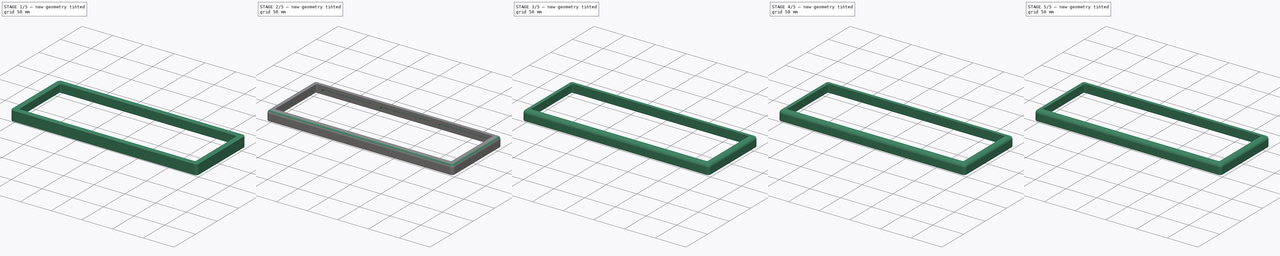
[diagram: build sequence overview — one tinted view per stage of 5, left to right]
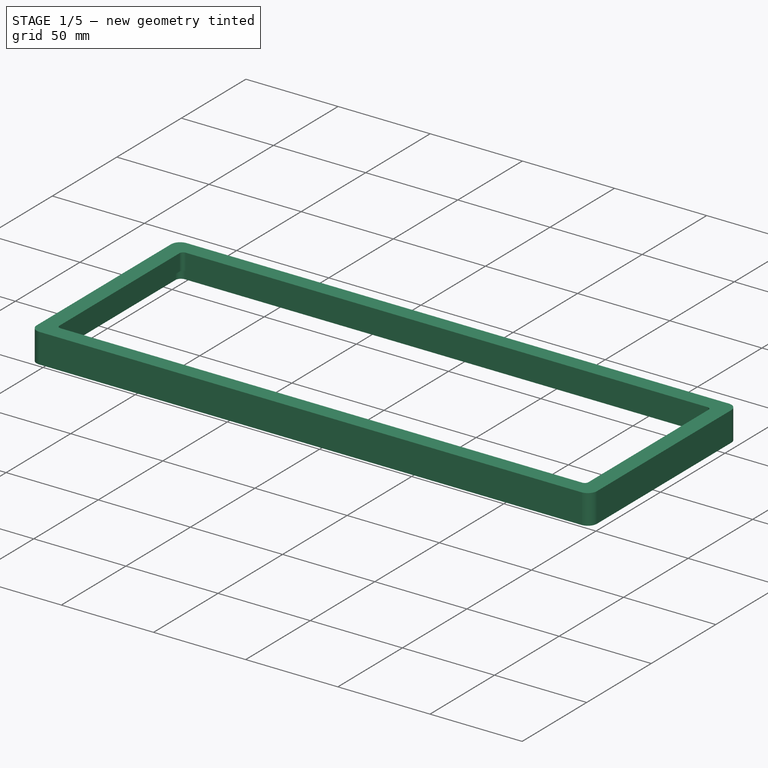
[diagram: stage 1 of 5 — iso view after this stage's code; geometry added in this stage tinted green]
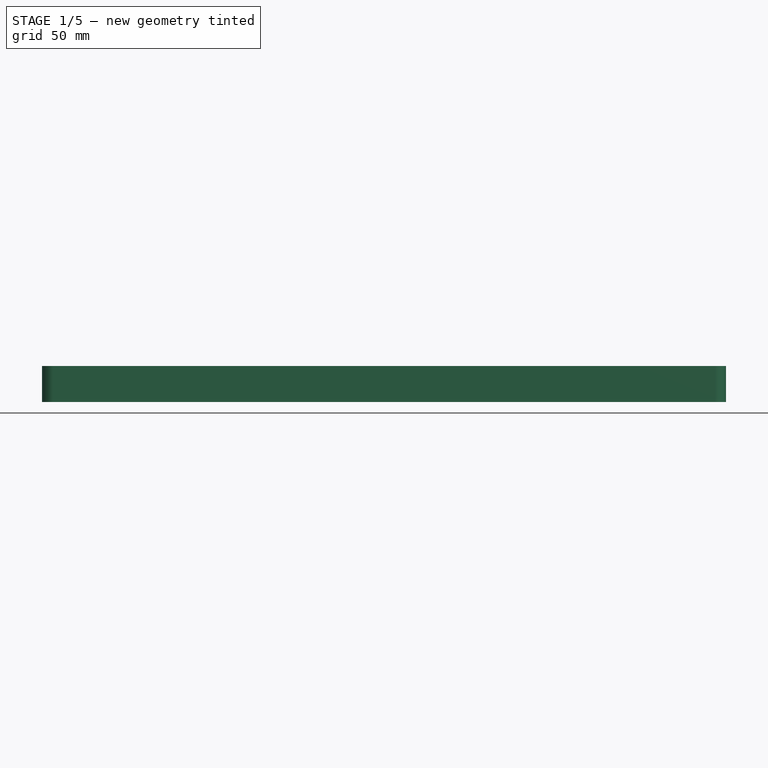
[diagram: stage 1 of 5 — front view after this stage's code; geometry added in this stage tinted green]
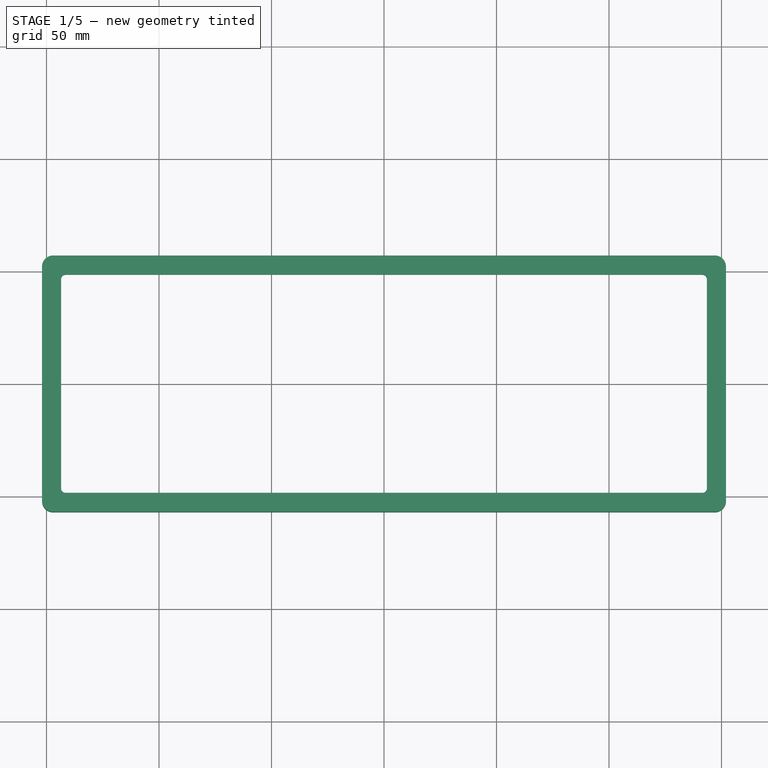
[diagram: stage 1 of 5 — top view after this stage's code; geometry added in this stage tinted green]
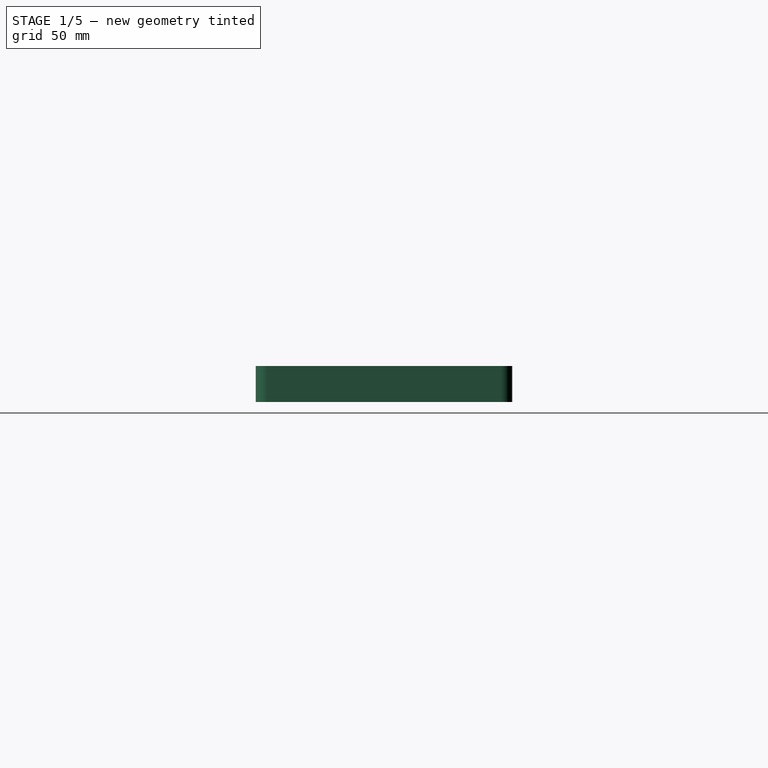
[diagram: stage 1 of 5 — right view after this stage's code; geometry added in this stage tinted green]
FCSTD DOCUMENT  (FreeCAD 0.19R)
Label: jykb60_gasket_top
License: All rights reserved
LicenseURL: http://en.wikipedia.org/wiki/All_rights_reserved
objects: PartDesign::Fillet×54, Sketcher::SketchObject×4, PartDesign::Pocket×3, PartDesign::Pad×1, PartDesign::Body×1
note: 121 computed .brp shape members not serialized (recipe doc carries the construction recipe); baked Part::Feature solids carry a one-line shape summary decoded from their .brp

FEATURE [Sketcher::SketchObject] Sketch001
  FullyConstrained = true
  MapMode = 5
  Support = -> [XY_Plane001]
  sketch-geometry (8):
    g0: LineSegment StartX=-152 StartY=57 StartZ=0 EndX=152 EndY=57 EndZ=0
    g1: LineSegment StartX=152 StartY=57 StartZ=0 EndX=152 EndY=-57 EndZ=0
    g2: LineSegment StartX=152 StartY=-57 StartZ=0 EndX=-152 EndY=-57 EndZ=0
    g3: LineSegment StartX=-152 StartY=-57 StartZ=0 EndX=-152 EndY=57 EndZ=0
    g4: LineSegment StartX=-143.5 StartY=48.5 StartZ=0 EndX=143.5 EndY=48.5 EndZ=0
    g5: LineSegment StartX=143.5 StartY=48.5 StartZ=0 EndX=143.5 EndY=-48.5 EndZ=0
    g6: LineSegment StartX=143.5 StartY=-48.5 StartZ=0 EndX=-143.5 EndY=-48.5 EndZ=0
    g7: LineSegment StartX=-143.5 StartY=-48.5 StartZ=0 EndX=-143.5 EndY=48.5 EndZ=0
  constraints (22):
    c: Coincident(g0,g1)
    c: Coincident(g1,g2)
    c: Coincident(g2,g3)
    c: Coincident(g3,g0)
    c: Horizontal(g0)
    c: Horizontal(g2)
    c: Vertical(g1)
    c: Vertical(g3)
    c: Coincident(g4,g5)
    c: Coincident(g5,g6)
    c: Coincident(g6,g7)
    c: Coincident(g7,g4)
    c: Horizontal(g4)
    c: Horizontal(g6)
    c: Vertical(g5)
    c: Vertical(g7)
    c: DistanceX(g0,g0) = 304
    c: DistanceY(g1,g1) = 114
    c: DistanceY(g5,g5) = 97
    c: DistanceX(g4,g4) = 287
    c: Symmetric(g0,g1,g-1)
    c: Symmetric(g4,g5,g-1)
FEATURE [PartDesign::Pad] Pad
  Direction = (1,1,1)
  Length = 16
  Length2 = 100
  Profile = -> Sketch001
  Type = 0
FEATURE [PartDesign::Fillet] Fillet
  Base = -> Pad [Edge13]
  BaseFeature = -> Pad
  Radius = 2
  SupportTransform = false
FEATURE [PartDesign::Fillet] Fillet001
  Base = -> Fillet [Edge23]
  BaseFeature = -> Fillet
  Radius = 2
  SupportTransform = false
FEATURE [PartDesign::Fillet] Fillet002
  Base = -> Fillet001 [Edge20]
  BaseFeature = -> Fillet001
  Radius = 2
  SupportTransform = false
FEATURE [PartDesign::Fillet] Fillet003
  Base = -> Fillet002 [Edge19]
  BaseFeature = -> Fillet002
  Radius = 2
  SupportTransform = false
FEATURE [PartDesign::Fillet] Fillet004
  Base = -> Fillet003 [Edge34]
  BaseFeature = -> Fillet003
  Radius = 5
  SupportTransform = false
FEATURE [PartDesign::Fillet] Fillet005
  Base = -> Fillet004 [Edge21]
  BaseFeature = -> Fillet004
  Radius = 5
  SupportTransform = false
FEATURE [PartDesign::Fillet] Fillet006
  Base = -> Fillet005 [Edge24]
  BaseFeature = -> Fillet005
  Radius = 5
  SupportTransform = false
FEATURE [PartDesign::Fillet] Fillet007
  Base = -> Fillet006 [Edge23]
  BaseFeature = -> Fillet006
  Radius = 5
  SupportTransform = false
FEATURE [Sketcher::SketchObject] Sketch002
  FullyConstrained = true
  MapMode = 5
  Placement = pos=(0,0,0) rot=(1,0,0;3.14159rad)
  Support = -> [Fillet007]
  sketch-geometry (4):
    g0: LineSegment StartX=-148.5 StartY=53.5 StartZ=0 EndX=148.5 EndY=53.5 EndZ=0
    g1: LineSegment StartX=148.5 StartY=53.5 StartZ=0 EndX=148.5 EndY=-53.5 EndZ=0
    g2: LineSegment StartX=148.5 StartY=-53.5 StartZ=0 EndX=-148.5 EndY=-53.5 EndZ=0
    g3: LineSegment StartX=-148.5 StartY=-53.5 StartZ=0 EndX=-148.5 EndY=53.5 EndZ=0
  constraints (11):
    c: Coincident(g0,g1)
    c: Coincident(g1,g2)
    c: Coincident(g2,g3)
    c: Coincident(g3,g0)
    c: Horizontal(g0)
    c: Horizontal(g2)
    c: Vertical(g1)
    c: Vertical(g3)
    c: DistanceX(g0,g0) = 297
    c: DistanceY(g1,g1) = 107
    c: Symmetric(g0,g1,g-1)
FEATURE [PartDesign::Pocket] Pocket
  BaseFeature = -> Fillet007
  Length = 7
  Length2 = 100
  Profile = -> Sketch002
  Type = 0
FEATURE [PartDesign::Fillet] Fillet008
  Base = -> Pocket [Edge30]
  BaseFeature = -> Pocket
  Radius = 3
  SupportTransform = false
FEATURE [PartDesign::Fillet] Fillet009
  Base = -> Fillet008 [Edge15]
  BaseFeature = -> Fillet008
  Radius = 3
  SupportTransform = false
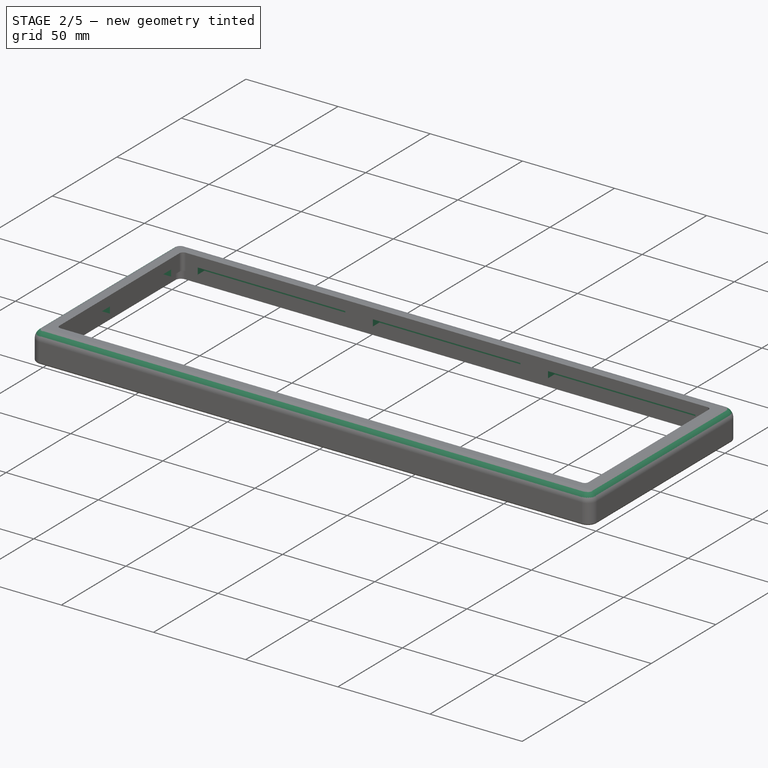
[diagram: stage 2 of 5 — iso view after this stage's code; geometry added in this stage tinted green]
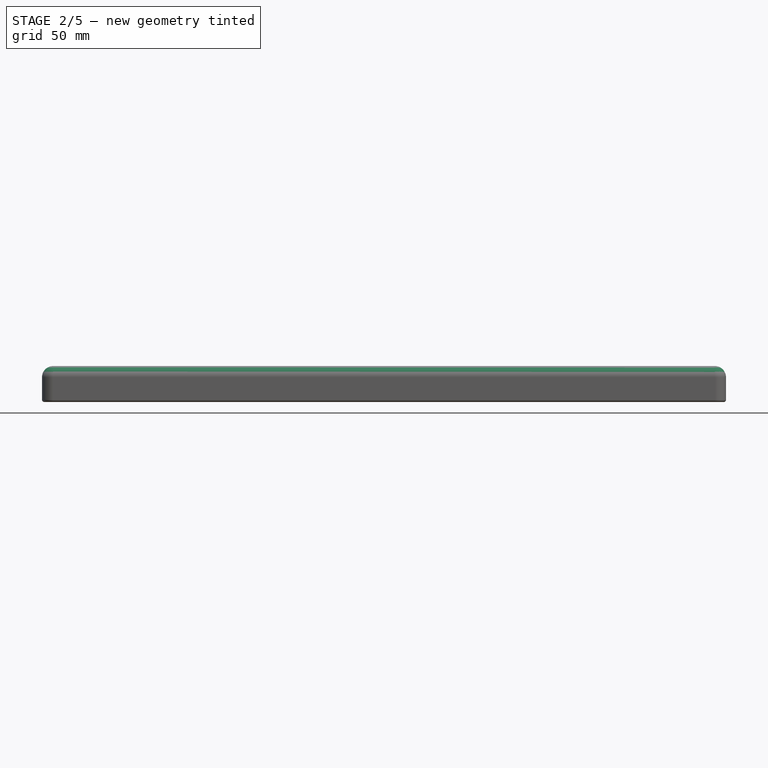
[diagram: stage 2 of 5 — front view after this stage's code; geometry added in this stage tinted green]
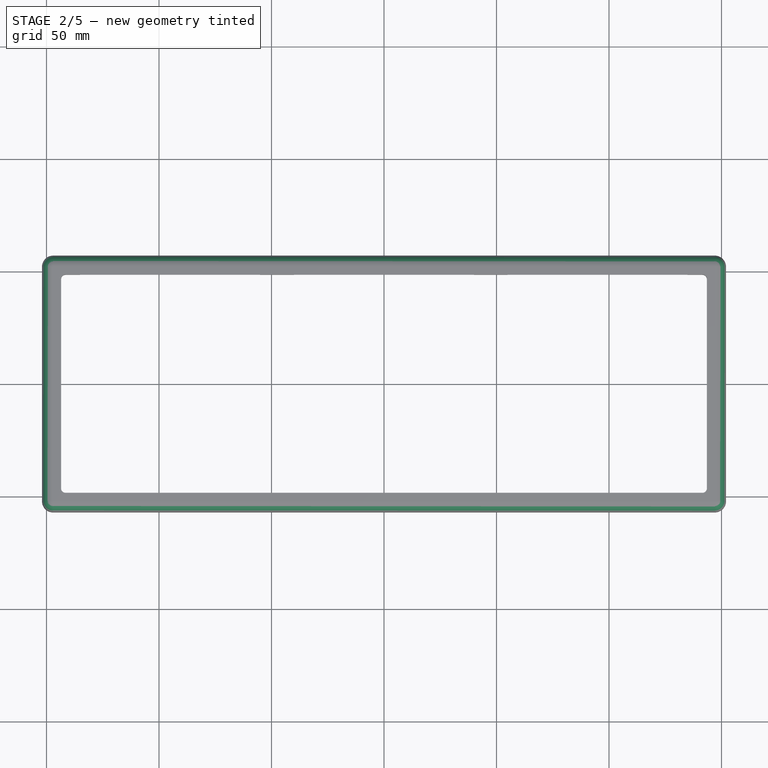
[diagram: stage 2 of 5 — top view after this stage's code; geometry added in this stage tinted green]
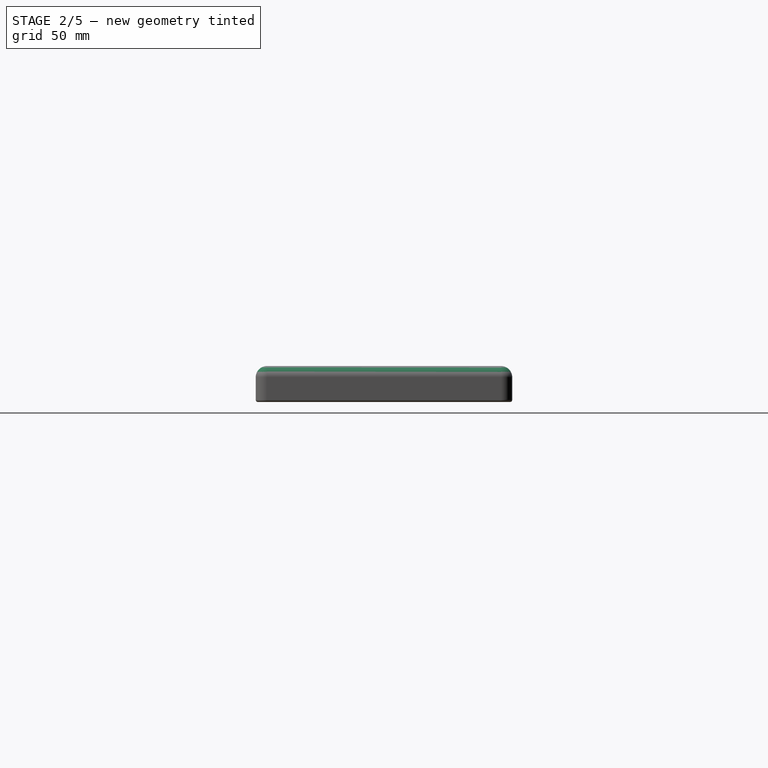
[diagram: stage 2 of 5 — right view after this stage's code; geometry added in this stage tinted green]
FEATURE [PartDesign::Fillet] Fillet010
  Base = -> Fillet009 [Edge22]
  BaseFeature = -> Fillet009
  Radius = 3
  SupportTransform = false
FEATURE [PartDesign::Fillet] Fillet011
  Base = -> Fillet010 [Edge23]
  BaseFeature = -> Fillet010
  Radius = 3
  SupportTransform = false
FEATURE [Sketcher::SketchObject] Sketch003
  FullyConstrained = true
  MapMode = 5
  Placement = pos=(0,0,7) rot=(1,0,0;3.14159rad)
  Support = -> [Fillet011]
  sketch-geometry (24):
    g0: LineSegment StartX=-40 StartY=53.5 StartZ=0 EndX=40 EndY=53.5 EndZ=0
    g1: LineSegment StartX=40 StartY=53.5 StartZ=0 EndX=40 EndY=48.5 EndZ=0
    g2: LineSegment StartX=40 StartY=48.5 StartZ=0 EndX=-40 EndY=48.5 EndZ=0
    g3: LineSegment StartX=-40 StartY=48.5 StartZ=0 EndX=-40 EndY=53.5 EndZ=0
    g4: LineSegment StartX=-40 StartY=-48.5 StartZ=0 EndX=40 EndY=-48.5 EndZ=0
    g5: LineSegment StartX=40 StartY=-48.5 StartZ=0 EndX=40 EndY=-53.5 EndZ=0
    g6: LineSegment StartX=40 StartY=-53.5 StartZ=0 EndX=-40 EndY=-53.5 EndZ=0
    g7: LineSegment StartX=-40 StartY=-53.5 StartZ=0 EndX=-40 EndY=-48.5 EndZ=0
    g8: LineSegment StartX=-135 StartY=53.5 StartZ=0 EndX=-55 EndY=53.5 EndZ=0
    g9: LineSegment StartX=-55 StartY=53.5 StartZ=0 EndX=-55 EndY=48.5 EndZ=0
    g10: LineSegment StartX=-55 StartY=48.5 StartZ=0 EndX=-135 EndY=48.5 EndZ=0
    g11: LineSegment StartX=-135 StartY=48.5 StartZ=0 EndX=-135 EndY=53.5 EndZ=0
    g12: LineSegment StartX=55 StartY=53.5 StartZ=0 EndX=135 EndY=53.5 EndZ=0
    g13: LineSegment StartX=135 StartY=53.5 StartZ=0 EndX=135 EndY=48.5 EndZ=0
    g14: LineSegment StartX=135 StartY=48.5 StartZ=0 EndX=55 EndY=48.5 EndZ=0
    g15: LineSegment StartX=55 StartY=48.5 StartZ=0 EndX=55 EndY=53.5 EndZ=0
    g16: LineSegment StartX=55 StartY=-48.5 StartZ=0 EndX=135 EndY=-48.5 EndZ=0
    g17: LineSegment StartX=135 StartY=-48.5 StartZ=0 EndX=135 EndY=-53.5 EndZ=0
    g18: LineSegment StartX=135 StartY=-53.5 StartZ=0 EndX=55 EndY=-53.5 EndZ=0
    g19: LineSegment StartX=55 StartY=-53.5 StartZ=0 EndX=55 EndY=-48.5 EndZ=0
    g20: LineSegment StartX=-135 StartY=-48.5 StartZ=0 EndX=-55 EndY=-48.5 EndZ=0
    g21: LineSegment StartX=-55 StartY=-48.5 StartZ=0 EndX=-55 EndY=-53.5 EndZ=0
    g22: LineSegment StartX=-55 StartY=-53.5 StartZ=0 EndX=-135 EndY=-53.5 EndZ=0
    g23: LineSegment StartX=-135 StartY=-53.5 StartZ=0 EndX=-135 EndY=-48.5 EndZ=0
  constraints (72):
    c: Coincident(g0,g1)
    c: Coincident(g1,g2)
    c: Coincident(g2,g3)
    c: Coincident(g3,g0)
    c: Horizontal(g0)
    c: Horizontal(g2)
    c: Vertical(g1)
    c: Vertical(g3)
    c: Coincident(g4,g5)
    c: Coincident(g5,g6)
    c: Coincident(g6,g7)
    c: Coincident(g7,g4)
    c: Horizontal(g4)
    c: Horizontal(g6)
    c: Vertical(g5)
    c: Vertical(g7)
    c: Coincident(g8,g9)
    c: Coincident(g9,g10)
    c: Coincident(g10,g11)
    c: Coincident(g11,g8)
    c: Horizontal(g8)
    c: Horizontal(g10)
    c: Vertical(g9)
    c: Vertical(g11)
    c: Coincident(g12,g13)
    c: Coincident(g13,g14)
    c: Coincident(g14,g15)
    c: Coincident(g15,g12)
    c: Horizontal(g12)
    c: Horizontal(g14)
    c: Vertical(g13)
    c: Vertical(g15)
    c: Coincident(g16,g17)
    c: Coincident(g17,g18)
    c: Coincident(g18,g19)
    c: Coincident(g19,g16)
    c: Horizontal(g16)
    c: Horizontal(g18)
    c: Vertical(g17)
    c: Vertical(g19)
    c: Coincident(g20,g21)
    c: Coincident(g21,g22)
    c: Coincident(g22,g23)
    c: Coincident(g23,g20)
    c: Horizontal(g20)
    c: Horizontal(g22)
    c: Vertical(g21)
    c: Vertical(g23)
    c: DistanceX(g12,g12) = 80
    c: DistanceX(g0,g0) = 80
    c: DistanceX(g8,g8) = 80
    c: DistanceX(g20,g20) = 80
    c: DistanceX(g4,g4) = 80
    c: DistanceX(g16,g16) = 80
    c: DistanceY(g13,g13) = 5
    c: DistanceY(g1,g1) = 5
    c: DistanceY(g9,g9) = 5
    c: DistanceY(g21,g21) = 5
    c: DistanceY(g5,g5) = 5
    c: DistanceY(g19,g19) = 5
    c: DistanceX(g0,g12) = 15
    c: DistanceX(g8,g0) = 15
    c: DistanceX(g20,g4) = 15
    c: DistanceX(g4,g16) = 15
    c: DistanceX(g-1,g0) = 40
    c: DistanceX(g-1,g5) = 40
    c: DistanceY(g-1,g9) = 48.5
    c: DistanceY(g-1,g2) = 48.5
    c: DistanceY(g-1,g14) = 48.5
    c: DistanceY(g16,g-1) = 48.5
    c: DistanceY(g4,g-1) = 48.5
    c: DistanceY(g20,g-1) = 48.5
FEATURE [PartDesign::Pocket] Pocket001
  BaseFeature = -> Fillet011
  Length = 3.5
  Length2 = 100
  Profile = -> Sketch003
  Type = 0
FEATURE [Sketcher::SketchObject] Sketch004
  FullyConstrained = true
  MapMode = 5
  Placement = pos=(0,0,7) rot=(1,0,0;3.14159rad)
  Support = -> [Pocket001]
  sketch-geometry (16):
    g0: LineSegment StartX=-148.5 StartY=40 StartZ=0 EndX=-143.5 EndY=40 EndZ=0
    g1: LineSegment StartX=-143.5 StartY=40 StartZ=0 EndX=-143.5 EndY=7.5 EndZ=0
    g2: LineSegment StartX=-143.5 StartY=7.5 StartZ=0 EndX=-148.5 EndY=7.5 EndZ=0
    g3: LineSegment StartX=-148.5 StartY=7.5 StartZ=0 EndX=-148.5 EndY=40 EndZ=0
    g4: LineSegment StartX=143.5 StartY=40 StartZ=0 EndX=148.5 EndY=40 EndZ=0
    g5: LineSegment StartX=148.5 StartY=40 StartZ=0 EndX=148.5 EndY=7.5 EndZ=0
    g6: LineSegment StartX=148.5 StartY=7.5 StartZ=0 EndX=143.5 EndY=7.5 EndZ=0
    g7: LineSegment StartX=143.5 StartY=7.5 StartZ=0 EndX=143.5 EndY=40 EndZ=0
    g8: LineSegment StartX=143.5 StartY=-7.5 StartZ=0 EndX=148.5 EndY=-7.5 EndZ=0
    g9: LineSegment StartX=148.5 StartY=-7.5 StartZ=0 EndX=148.5 EndY=-40 EndZ=0
    g10: LineSegment StartX=148.5 StartY=-40 StartZ=0 EndX=143.5 EndY=-40 EndZ=0
    g11: LineSegment StartX=143.5 StartY=-40 StartZ=0 EndX=143.5 EndY=-7.5 EndZ=0
    g12: LineSegment StartX=-148.5 StartY=-7.5 StartZ=0 EndX=-143.5 EndY=-7.5 EndZ=0
    g13: LineSegment StartX=-143.5 StartY=-7.5 StartZ=0 EndX=-143.5 EndY=-40 EndZ=0
    g14: LineSegment StartX=-143.5 StartY=-40 StartZ=0 EndX=-148.5 EndY=-40 EndZ=0
    g15: LineSegment StartX=-148.5 StartY=-40 StartZ=0 EndX=-148.5 EndY=-7.5 EndZ=0
  constraints (48):
    c: Coincident(g0,g1)
    c: Coincident(g1,g2)
    c: Coincident(g2,g3)
    c: Coincident(g3,g0)
    c: Horizontal(g0)
    c: Horizontal(g2)
    c: Vertical(g1)
    c: Vertical(g3)
    c: Coincident(g4,g5)
    c: Coincident(g5,g6)
    c: Coincident(g6,g7)
    c: Coincident(g7,g4)
    c: Horizontal(g4)
    c: Horizontal(g6)
    c: Vertical(g5)
    c: Vertical(g7)
    c: Coincident(g8,g9)
    c: Coincident(g9,g10)
    c: Coincident(g10,g11)
    c: Coincident(g11,g8)
    c: Horizontal(g8)
    c: Horizontal(g10)
    c: Vertical(g9)
    c: Vertical(g11)
    c: Coincident(g12,g13)
    c: Coincident(g13,g14)
    c: Coincident(g14,g15)
    c: Coincident(g15,g12)
    c: Horizontal(g12)
    c: Horizontal(g14)
    c: Vertical(g13)
    c: Vertical(g15)
    c: DistanceX(g4,g4) = 5
    c: DistanceX(g8,g8) = 5
    c: DistanceX(g12,g12) = 5
    c: DistanceX(g0,g0) = 5
    c: DistanceY(g5,g5) = 32.5
    c: DistanceY(g9,g9) = 32.5
    c: DistanceY(g13,g13) = 32.5
    c: DistanceY(g1,g1) = 32.5
    c: DistanceX(g-1,g4) = 143.5
    c: DistanceX(g-1,g10) = 143.5
    c: DistanceX(g0,g-1) = 143.5
    c: DistanceX(g13,g-1) = 143.5
    c: DistanceY(g-1,g1) = 7.5
    c: DistanceY(g12,g-1) = 7.5
    c: DistanceY(g-1,g6) = 7.5
    c: DistanceY(g8,g-1) = 7.5
FEATURE [PartDesign::Pocket] Pocket002
  BaseFeature = -> Pocket001
  Length = 3.5
  Length2 = 100
  Profile = -> Sketch004
  Type = 0
FEATURE [PartDesign::Fillet] Fillet012
  Base = -> Pocket002 [Edge65]
  BaseFeature = -> Pocket002
  Radius = 5
  SupportTransform = false
FEATURE [PartDesign::Fillet] Fillet013
  Base = -> Fillet012 [Edge22]
  BaseFeature = -> Fillet012
  Radius = 1
  SupportTransform = false
FEATURE [PartDesign::Fillet] Fillet014
  Base = -> Fillet013 [Edge159]
  BaseFeature = -> Fillet013
  Radius = 1
  SupportTransform = false
FEATURE [PartDesign::Fillet] Fillet015
  Base = -> Fillet014 [Edge70]
  BaseFeature = -> Fillet014
  Radius = 1
  SupportTransform = false
FEATURE [PartDesign::Fillet] Fillet016
  Base = -> Fillet015 [Edge55]
  BaseFeature = -> Fillet015
  Radius = 1
  SupportTransform = false
FEATURE [PartDesign::Fillet] Fillet017
  Base = -> Fillet016 [Edge69]
  BaseFeature = -> Fillet016
  Radius = 1
  SupportTransform = false
FEATURE [PartDesign::Fillet] Fillet018
  Base = -> Fillet017 [Edge119]
  BaseFeature = -> Fillet017
  Radius = 1
  SupportTransform = false
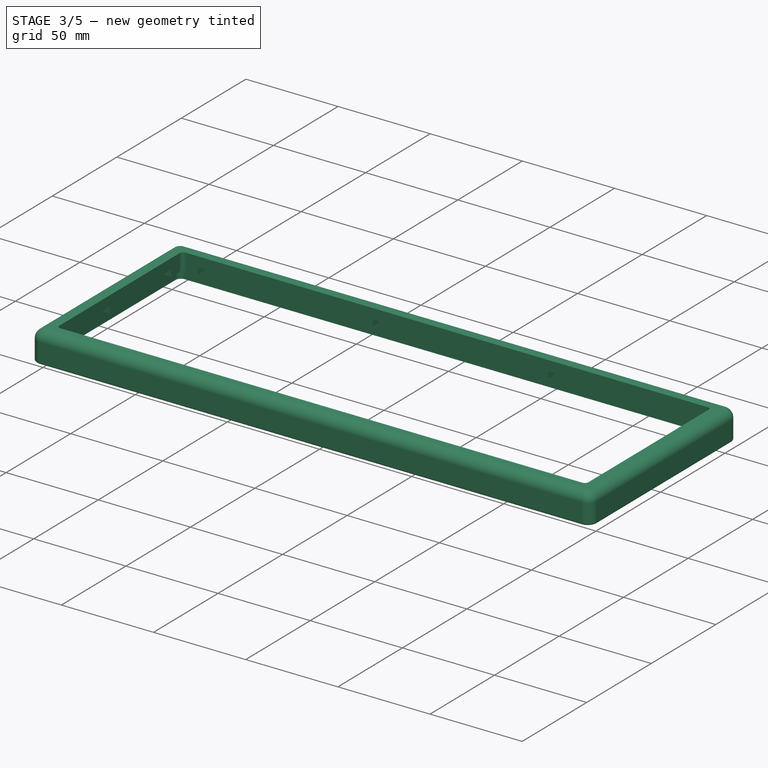
[diagram: stage 3 of 5 — iso view after this stage's code; geometry added in this stage tinted green]
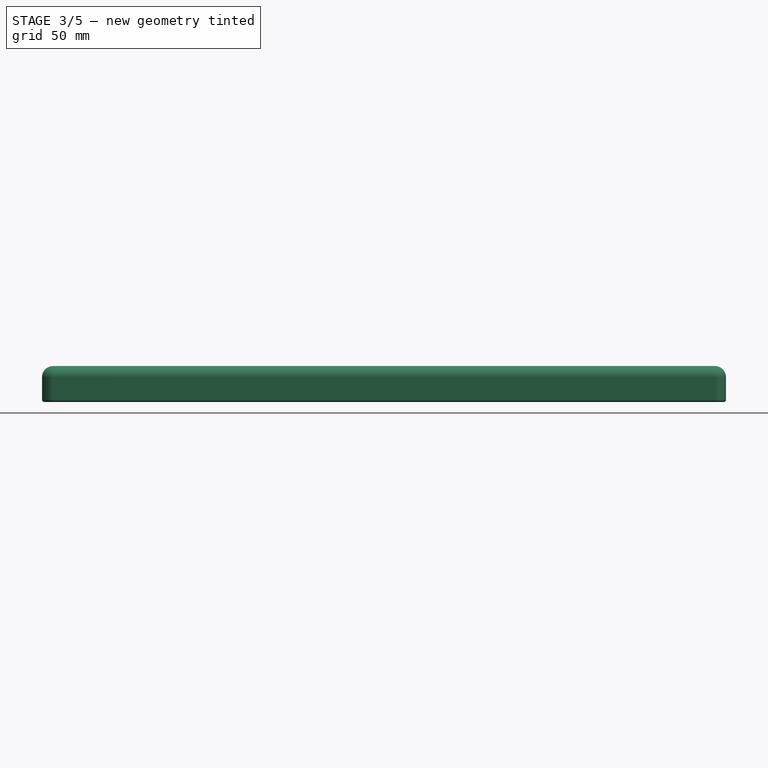
[diagram: stage 3 of 5 — front view after this stage's code; geometry added in this stage tinted green]
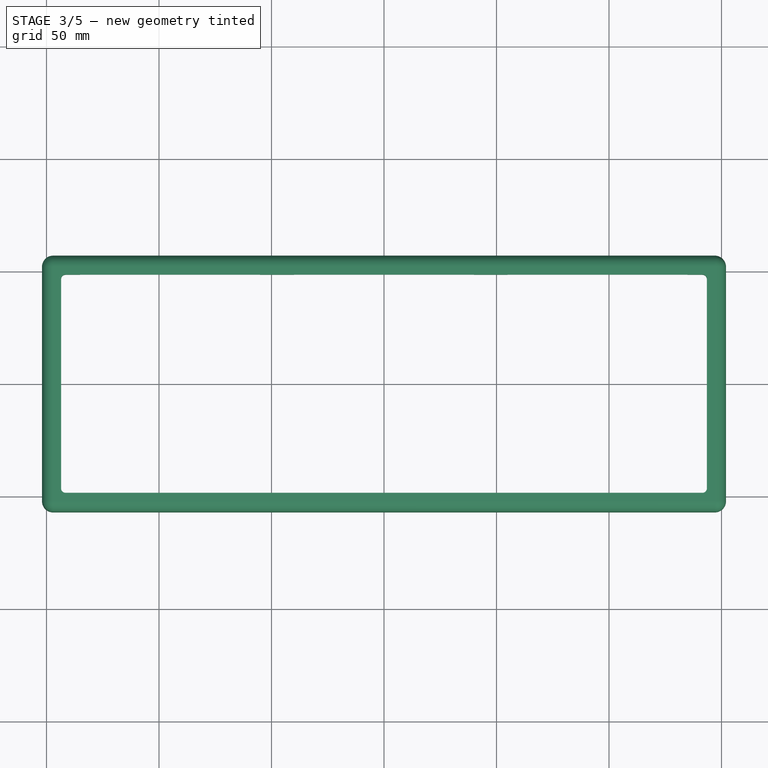
[diagram: stage 3 of 5 — top view after this stage's code; geometry added in this stage tinted green]
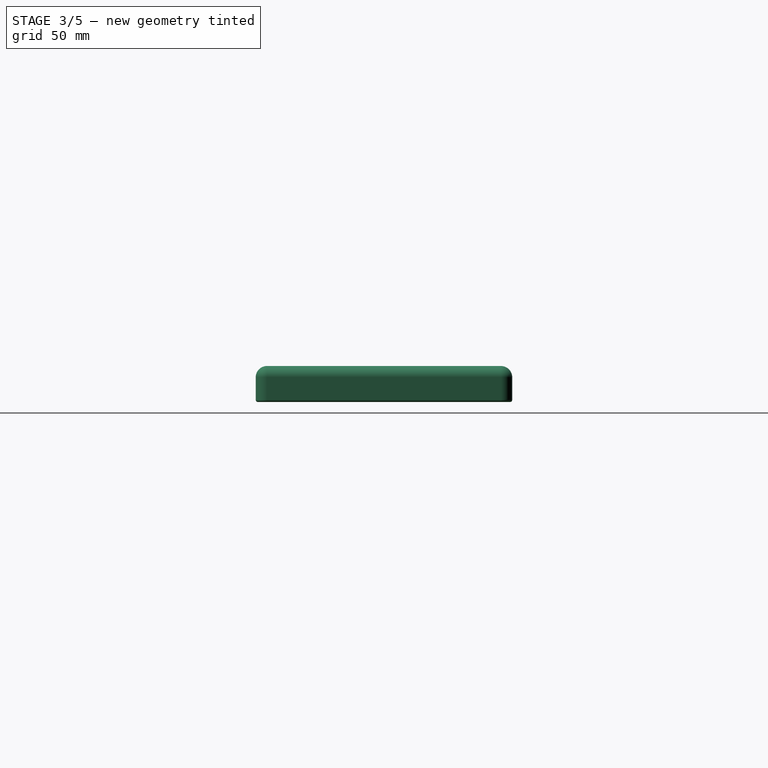
[diagram: stage 3 of 5 — right view after this stage's code; geometry added in this stage tinted green]
FEATURE [PartDesign::Fillet] Fillet019
  Base = -> Fillet018 [Edge9]
  BaseFeature = -> Fillet018
  Radius = 1
  SupportTransform = false
FEATURE [PartDesign::Fillet] Fillet020
  Base = -> Fillet019 [Edge15]
  BaseFeature = -> Fillet019
  Radius = 1
  SupportTransform = false
FEATURE [PartDesign::Fillet] Fillet021
  Base = -> Fillet020 [Edge32]
  BaseFeature = -> Fillet020
  Radius = 1
  SupportTransform = false
FEATURE [PartDesign::Fillet] Fillet022
  Base = -> Fillet021 [Edge24]
  BaseFeature = -> Fillet021
  Radius = 1
  SupportTransform = false
FEATURE [PartDesign::Fillet] Fillet023
  Base = -> Fillet022 [Edge89]
  BaseFeature = -> Fillet022
  Radius = 1
  SupportTransform = false
FEATURE [PartDesign::Fillet] Fillet024
  Base = -> Fillet023 [Edge18]
  BaseFeature = -> Fillet023
  Radius = 1
  SupportTransform = false
FEATURE [PartDesign::Fillet] Fillet025
  Base = -> Fillet024 [Edge11]
  BaseFeature = -> Fillet024
  Radius = 1
  SupportTransform = false
FEATURE [PartDesign::Fillet] Fillet026
  Base = -> Fillet025 [Edge139]
  BaseFeature = -> Fillet025
  Radius = 1
  SupportTransform = false
FEATURE [PartDesign::Fillet] Fillet027
  Base = -> Fillet026 [Edge13]
  BaseFeature = -> Fillet026
  Radius = 1
  SupportTransform = false
FEATURE [PartDesign::Fillet] Fillet028
  Base = -> Fillet027 [Edge43]
  BaseFeature = -> Fillet027
  Radius = 1
  SupportTransform = false
FEATURE [PartDesign::Fillet] Fillet029
  Base = -> Fillet028 [Edge39]
  BaseFeature = -> Fillet028
  Radius = 1
  SupportTransform = false
FEATURE [PartDesign::Fillet] Fillet030
  Base = -> Fillet029 [Edge174]
  BaseFeature = -> Fillet029
  Radius = 1
  SupportTransform = false
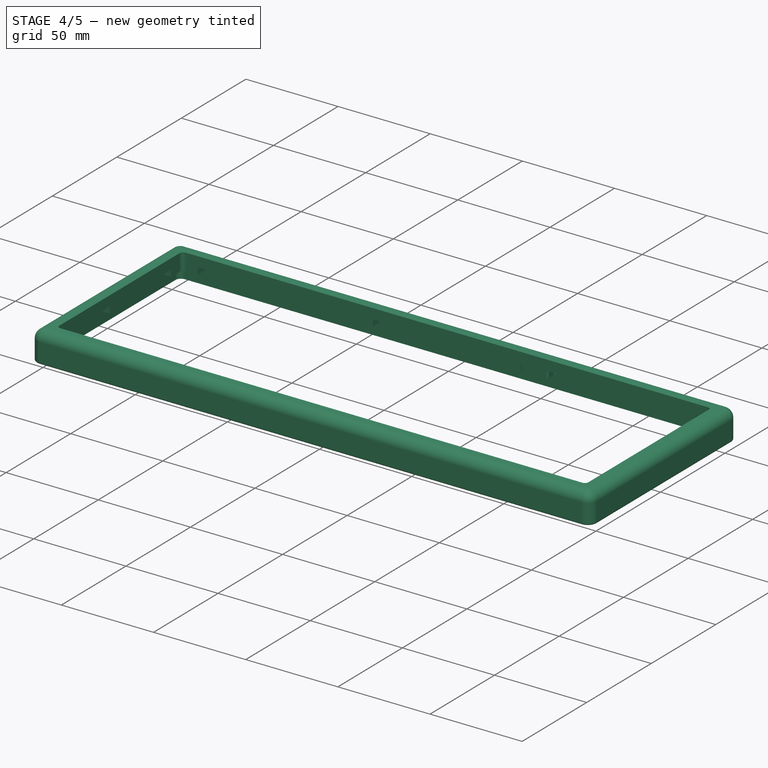
[diagram: stage 4 of 5 — iso view after this stage's code; geometry added in this stage tinted green]
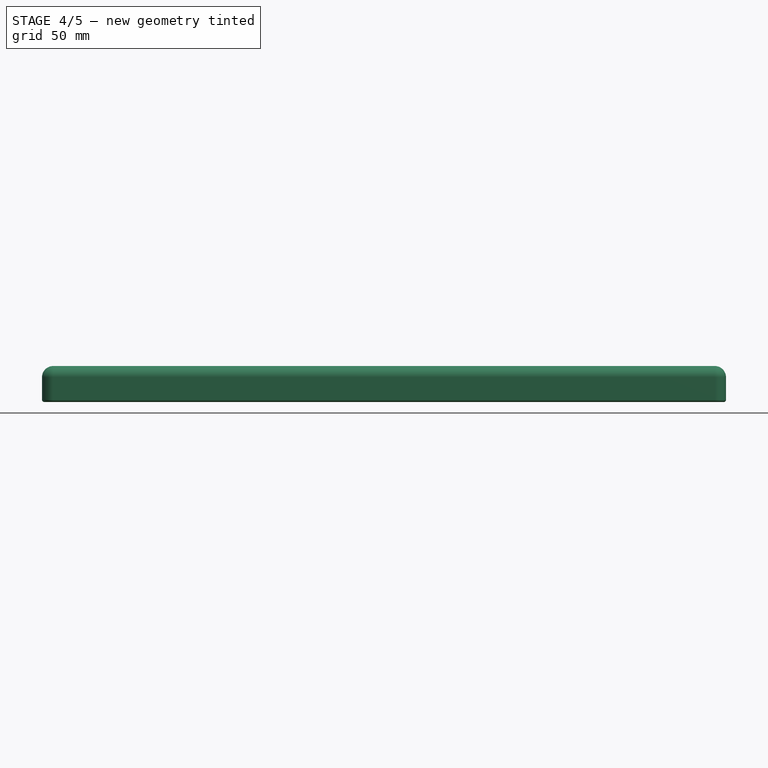
[diagram: stage 4 of 5 — front view after this stage's code; geometry added in this stage tinted green]
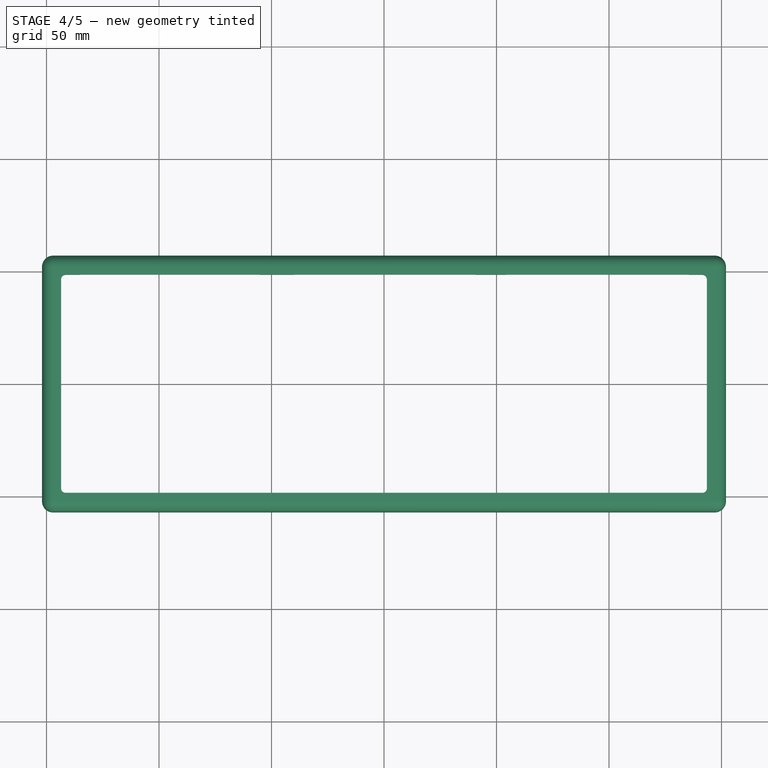
[diagram: stage 4 of 5 — top view after this stage's code; geometry added in this stage tinted green]
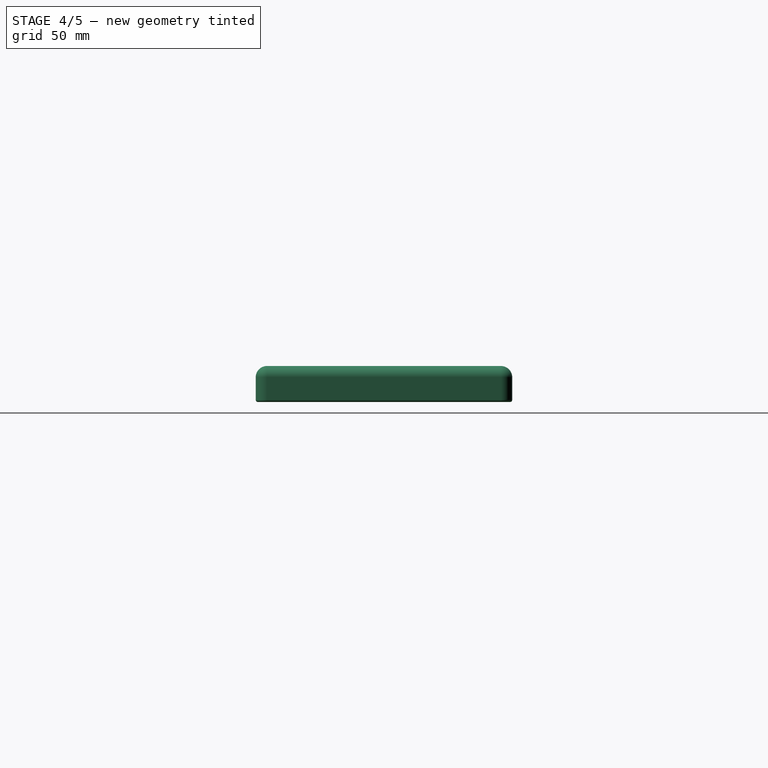
[diagram: stage 4 of 5 — right view after this stage's code; geometry added in this stage tinted green]
FEATURE [PartDesign::Fillet] Fillet031
  Base = -> Fillet030 [Edge9]
  BaseFeature = -> Fillet030
  Radius = 1
  SupportTransform = false
FEATURE [PartDesign::Fillet] Fillet032
  Base = -> Fillet031 [Edge15]
  BaseFeature = -> Fillet031
  Radius = 1
  SupportTransform = false
FEATURE [PartDesign::Fillet] Fillet033
  Base = -> Fillet032 [Edge28]
  BaseFeature = -> Fillet032
  Radius = 1
  SupportTransform = false
FEATURE [PartDesign::Fillet] Fillet034
  Base = -> Fillet033 [Edge54]
  BaseFeature = -> Fillet033
  Radius = 1
  SupportTransform = false
FEATURE [PartDesign::Fillet] Fillet035
  Base = -> Fillet034 [Edge16]
  BaseFeature = -> Fillet034
  Radius = 1
  SupportTransform = false
FEATURE [PartDesign::Fillet] Fillet036
  Base = -> Fillet035 [Edge101]
  BaseFeature = -> Fillet035
  Radius = 1
  SupportTransform = false
FEATURE [PartDesign::Fillet] Fillet037
  Base = -> Fillet036 [Edge34]
  BaseFeature = -> Fillet036
  Radius = 1
  SupportTransform = false
FEATURE [PartDesign::Fillet] Fillet038
  Base = -> Fillet037 [Edge103]
  BaseFeature = -> Fillet037
  Radius = 1
  SupportTransform = false
FEATURE [PartDesign::Fillet] Fillet039
  Base = -> Fillet038 [Edge9]
  BaseFeature = -> Fillet038
  Radius = 1
  SupportTransform = false
FEATURE [PartDesign::Fillet] Fillet040
  Base = -> Fillet039 [Edge15]
  BaseFeature = -> Fillet039
  Radius = 1
  SupportTransform = false
FEATURE [PartDesign::Fillet] Fillet041
  Base = -> Fillet040 [Edge32]
  BaseFeature = -> Fillet040
  Radius = 1
  SupportTransform = false
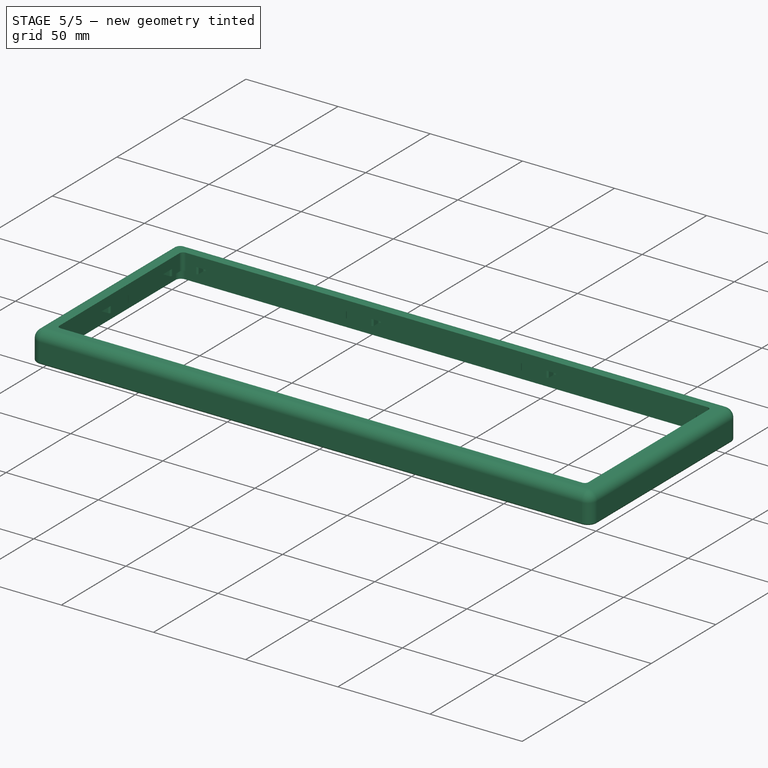
[diagram: stage 5 of 5 — iso view after this stage's code; geometry added in this stage tinted green]
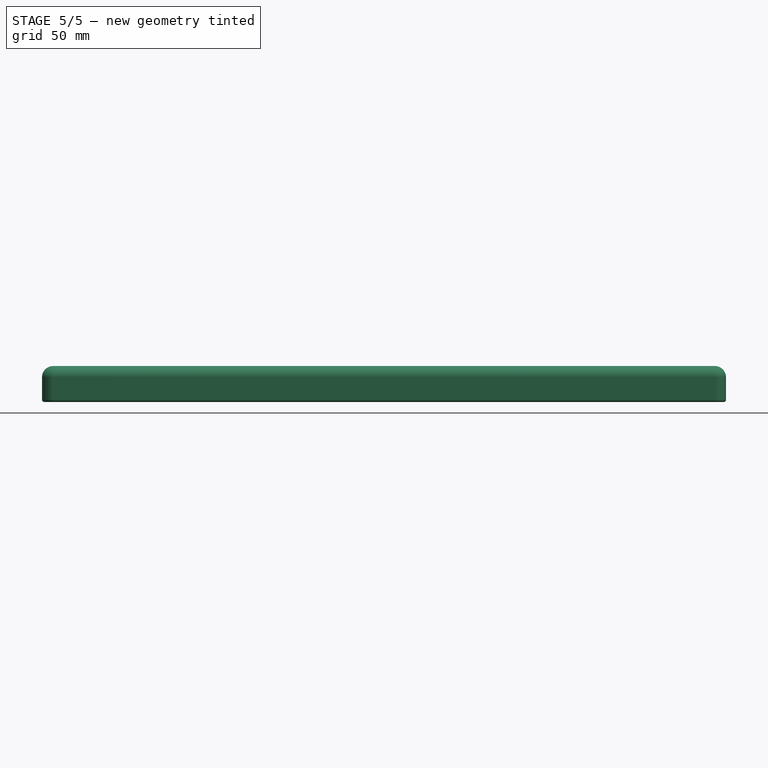
[diagram: stage 5 of 5 — front view after this stage's code; geometry added in this stage tinted green]
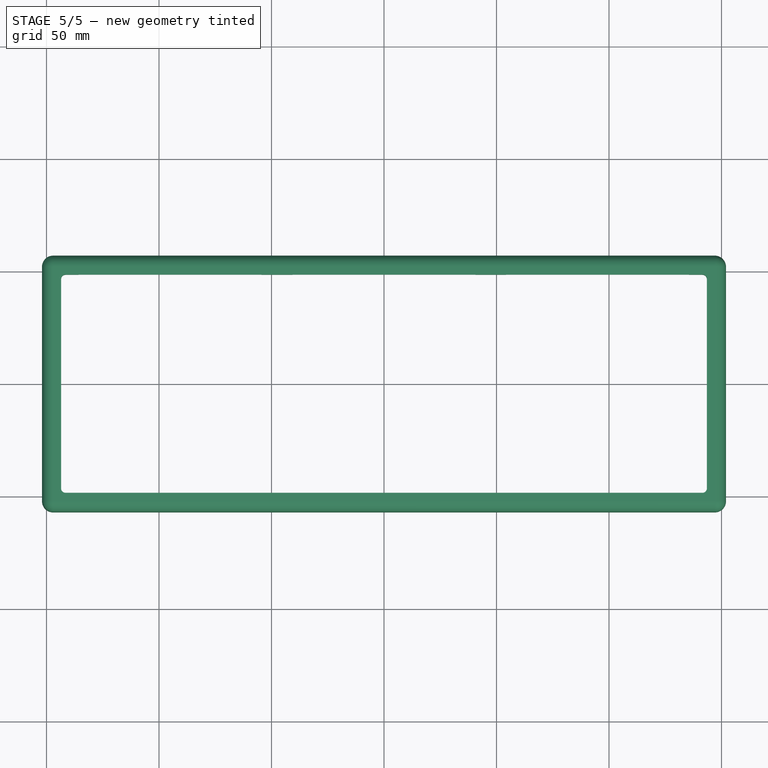
[diagram: stage 5 of 5 — top view after this stage's code; geometry added in this stage tinted green]
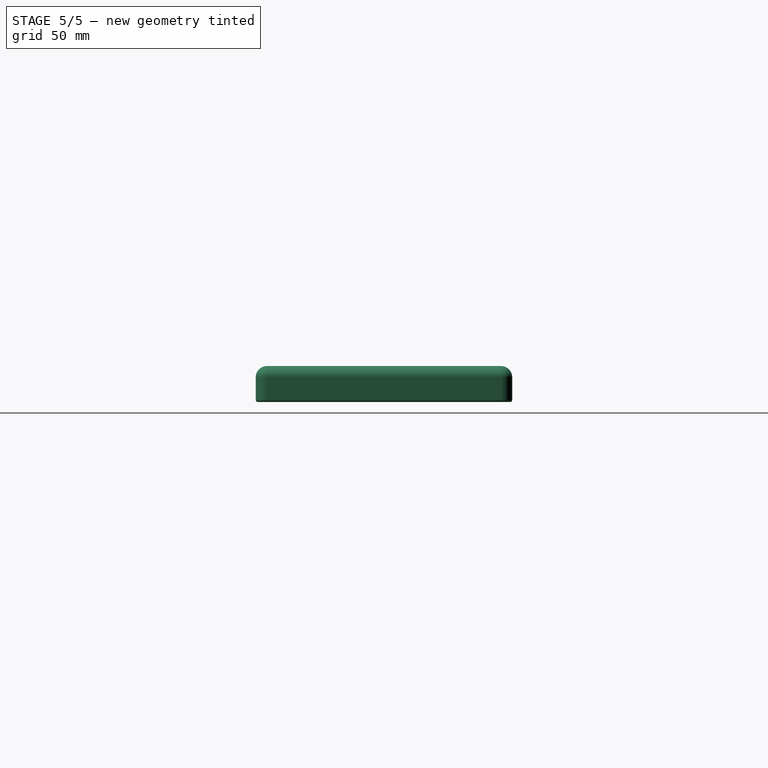
[diagram: stage 5 of 5 — right view after this stage's code; geometry added in this stage tinted green]
FEATURE [PartDesign::Fillet] Fillet042
  Base = -> Fillet041 [Edge60]
  BaseFeature = -> Fillet041
  Radius = 1
  SupportTransform = false
FEATURE [PartDesign::Fillet] Fillet043
  Base = -> Fillet042 [Edge16]
  BaseFeature = -> Fillet042
  Radius = 1
  SupportTransform = false
FEATURE [PartDesign::Fillet] Fillet044
  Base = -> Fillet043 [Edge45]
  BaseFeature = -> Fillet043
  Radius = 1
  SupportTransform = false
FEATURE [PartDesign::Fillet] Fillet045
  Base = -> Fillet044 [Edge12]
  BaseFeature = -> Fillet044
  Radius = 1
  SupportTransform = false
FEATURE [PartDesign::Fillet] Fillet046
  Base = -> Fillet045 [Edge57]
  BaseFeature = -> Fillet045
  Radius = 1
  SupportTransform = false
FEATURE [PartDesign::Fillet] Fillet047
  Base = -> Fillet046 [Edge16]
  BaseFeature = -> Fillet046
  Radius = 1
  SupportTransform = false
FEATURE [PartDesign::Fillet] Fillet048
  Base = -> Fillet047 [Edge116]
  BaseFeature = -> Fillet047
  Radius = 1
  SupportTransform = false
FEATURE [PartDesign::Fillet] Fillet049
  Base = -> Fillet048 [Edge31]
  BaseFeature = -> Fillet048
  Radius = 1
  SupportTransform = false
FEATURE [PartDesign::Fillet] Fillet050
  Base = -> Fillet049 [Edge23]
  BaseFeature = -> Fillet049
  Radius = 1
  SupportTransform = false
FEATURE [PartDesign::Fillet] Fillet051
  Base = -> Fillet050 [Edge29]
  BaseFeature = -> Fillet050
  Radius = 1
  SupportTransform = false
FEATURE [PartDesign::Fillet] Fillet052
  Base = -> Fillet051 [Edge40]
  BaseFeature = -> Fillet051
  Radius = 1
  SupportTransform = false
FEATURE [PartDesign::Fillet] Fillet053
  Base = -> Fillet052 [Edge12]
  BaseFeature = -> Fillet052
  Radius = 1
  SupportTransform = false
FEATURE [PartDesign::Body] Body001  label="Body"
  Group = -> [Sketch001,Pad,Fillet,Fillet001,Fillet002,Fillet003,Fillet004,Fillet005,Fillet006,Fillet007,Sketch002,Pocket,Fillet008,Fillet009,Fillet010,Fillet011,Sketch003,Pocket001,Sketch004,Pocket002,Fillet012,Fillet013,Fillet014,Fillet015,Fillet016,Fillet017,Fillet018,Fillet019,Fillet020,Fillet021,Fillet022,Fillet023,Fillet024,Fillet025,Fillet026,Fillet027,Fillet028,Fillet029,Fillet030,Fillet031,Fillet032,+21 more]
  Origin = -> Origin001
  Tip = -> Fillet053
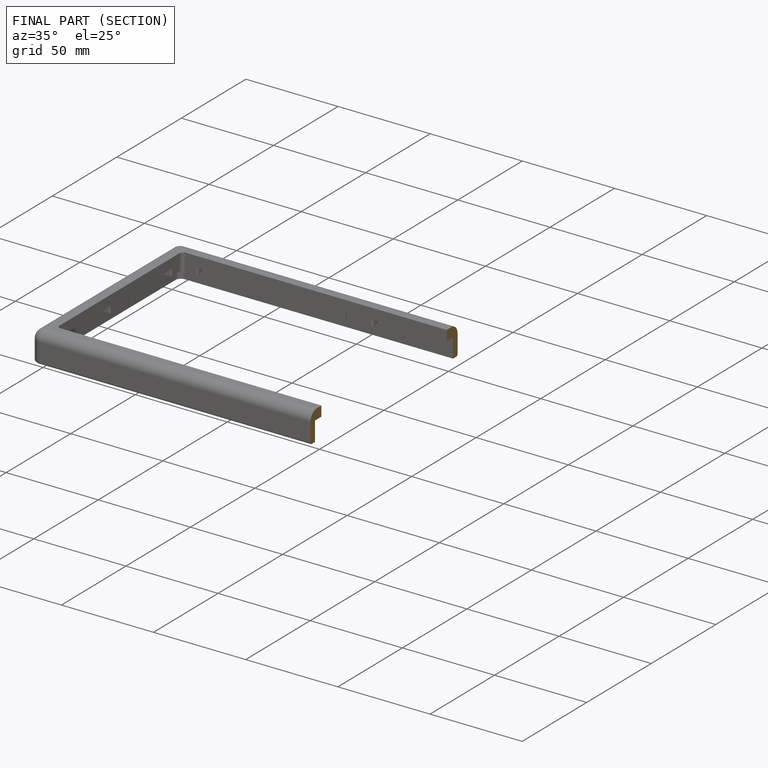
[diagram: finished part — half-section view (interior)]
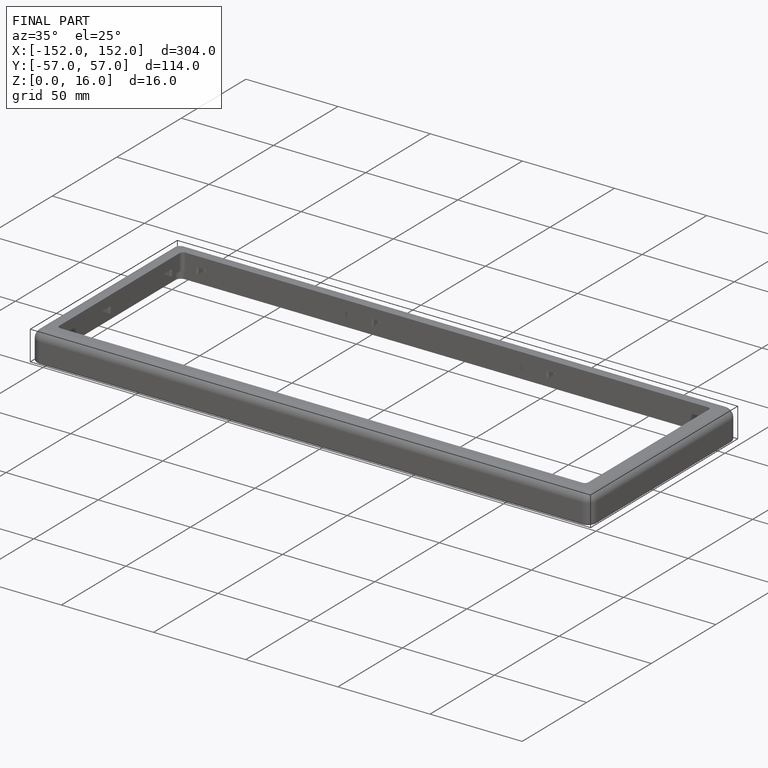
[diagram: finished part — iso view with bounding-box wireframe]
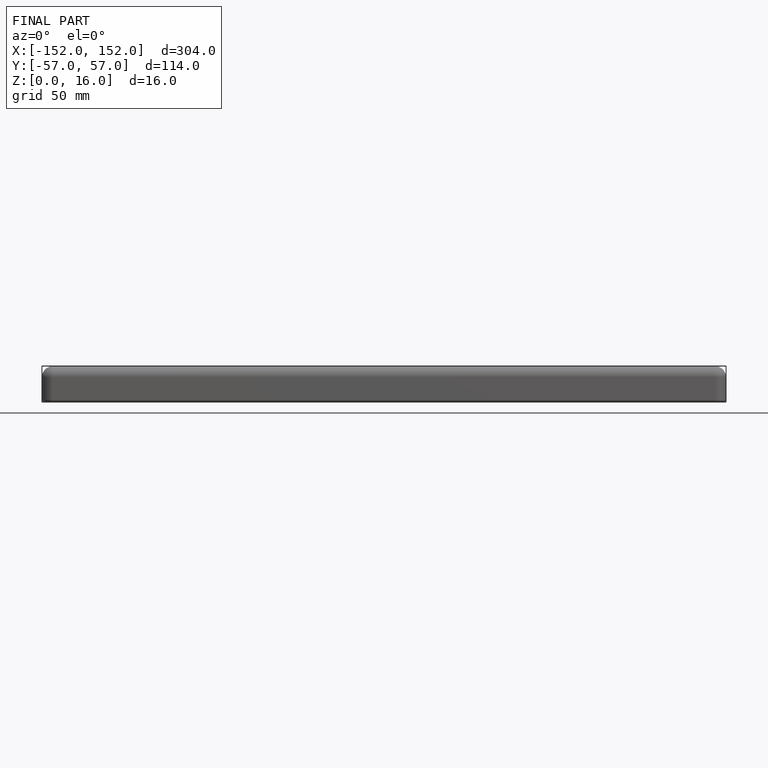
[diagram: finished part — front view with bounding-box wireframe]
